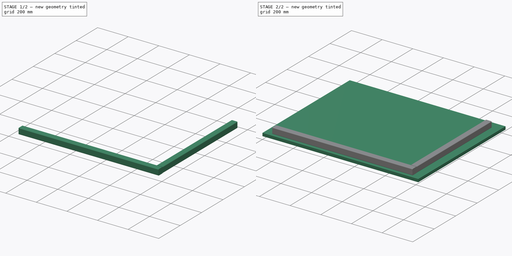
[diagram: build sequence overview — one tinted view per stage of 2, left to right]
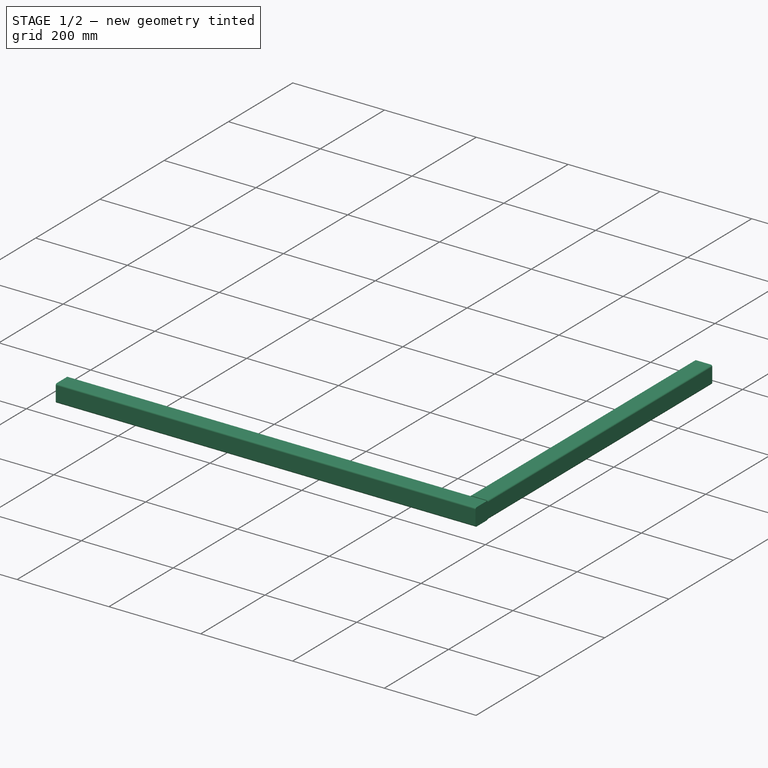
[diagram: stage 1 of 2 — iso view after this stage's code; geometry added in this stage tinted green]
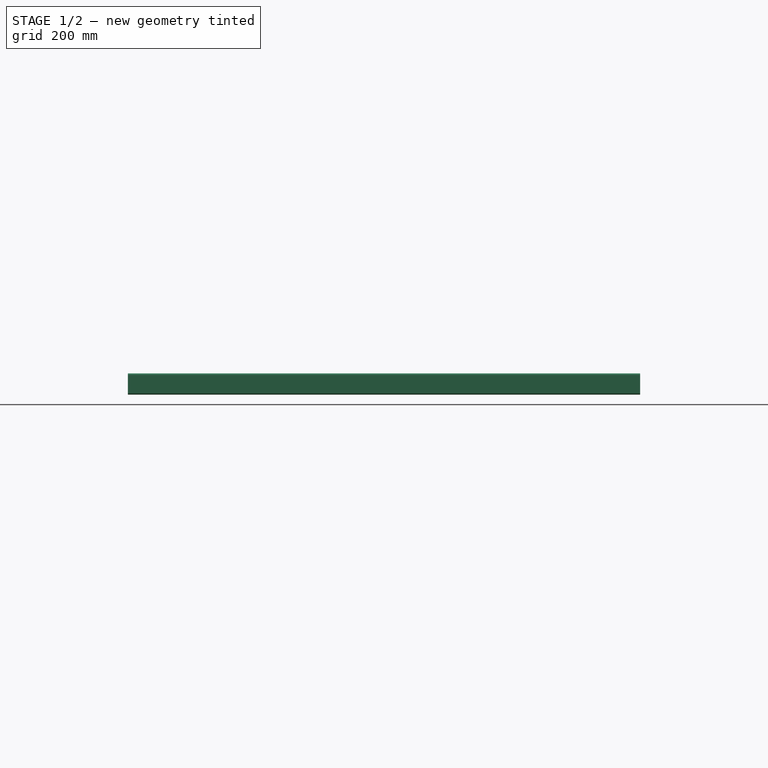
[diagram: stage 1 of 2 — front view after this stage's code; geometry added in this stage tinted green]
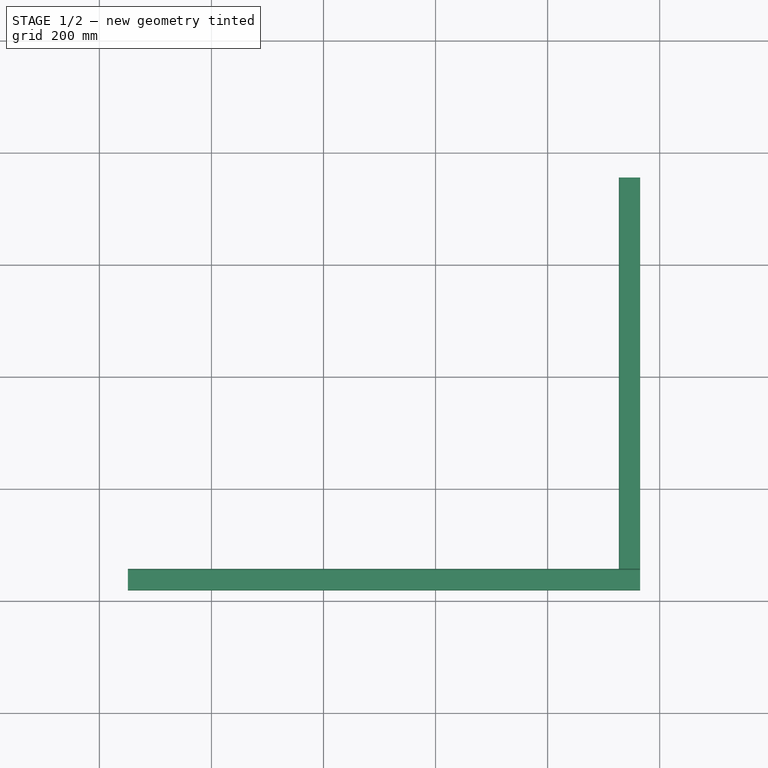
[diagram: stage 1 of 2 — top view after this stage's code; geometry added in this stage tinted green]
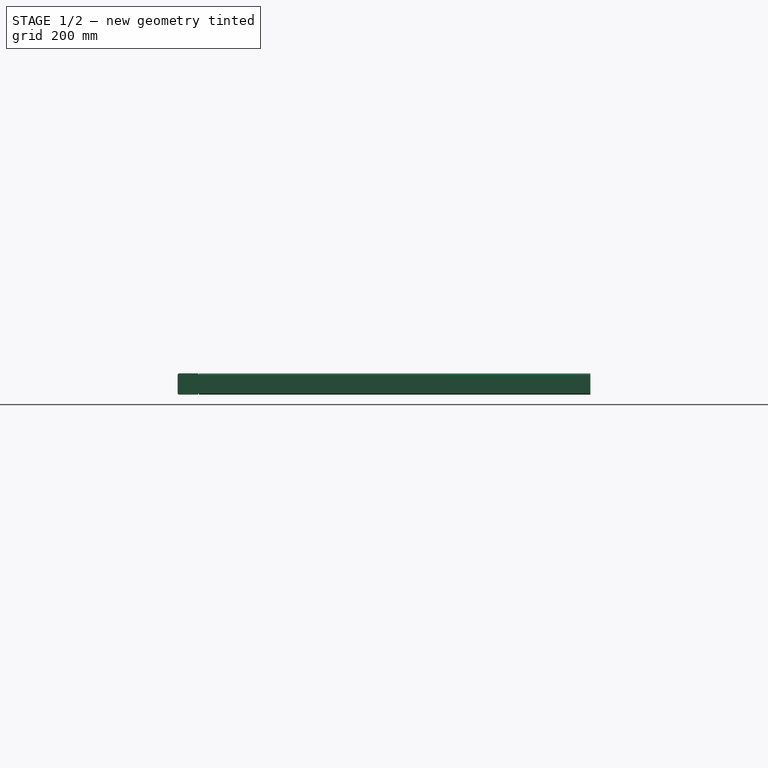
[diagram: stage 1 of 2 — right view after this stage's code; geometry added in this stage tinted green]
FCSTD DOCUMENT  (FreeCAD 0.19R)
Label: Lid
License: Creative Commons Attribution
LicenseURL: http://creativecommons.org/licenses/by/4.0/
objects: App::Link×27, Sketcher::SketchObject×3, Part::Extrusion×3, App::LinkGroup×2, Part::Feature×1
note: 7 computed .brp shape members not serialized (recipe doc carries the construction recipe); baked Part::Feature solids carry a one-line shape summary decoded from their .brp

FEATURE [Sketcher::SketchObject] Sketch019  label="Sketch_2x2_rail007"
  sketch-geometry (8):
    g0: LineSegment StartX=0 StartY=34.925 StartZ=0 EndX=0 EndY=3.175 EndZ=0
    g1: ArcOfCircle CenterX=3.175 CenterY=34.925 CenterZ=0 NormalX=0 NormalY=0 NormalZ=1 AngleXU=0 Radius=3.175 StartAngle=1.5708 EndAngle=3.14159
    g2: LineSegment StartX=3.175 StartY=38.1 StartZ=0 EndX=34.925 EndY=38.1 EndZ=0
    g3: ArcOfCircle CenterX=34.925 CenterY=34.925 CenterZ=0 NormalX=0 NormalY=0 NormalZ=1 AngleXU=0 Radius=3.175 StartAngle=1.2e-15 EndAngle=1.5708
    g4: LineSegment StartX=38.1 StartY=34.925 StartZ=0 EndX=38.1 EndY=3.175 EndZ=0
    g5: ArcOfCircle CenterX=34.925 CenterY=3.175 CenterZ=0 NormalX=0 NormalY=0 NormalZ=1 AngleXU=0 Radius=3.175 StartAngle=4.71239 EndAngle=6.28319
    g6: LineSegment StartX=34.925 StartY=0 StartZ=0 EndX=3.175 EndY=0 EndZ=0
    g7: ArcOfCircle CenterX=3.175 CenterY=3.175 CenterZ=0 NormalX=0 NormalY=0 NormalZ=1 AngleXU=0 Radius=3.175 StartAngle=3.14159 EndAngle=4.71239
  constraints (22):
    c: Vertical(g0)
    c: Tangent(g0,g1) = -1.5708
    c: Radius(g1) = 3.175
    c: Angle(g1) = 1.5708
    c: Coincident(g2,g1)
    c: Horizontal(g2)
    c: Tangent(g2,g3) = 1.5708
    c: Coincident(g4,g3)
    c: Vertical(g4)
    c: Tangent(g5,g4) = 1.5708
    c: Horizontal(g6)
    c: Tangent(g6,g5) = 1.5708
    c: Tangent(g7,g6) = 1.5708
    c: Tangent(g7,g0) = -1.5708
    c: Equal(g1,g7)
    c: Equal(g7,g3)
    c: Equal(g2,g0)
    c: Equal(g0,g6)
    c: Equal(g6,g4)
    c: PointOnObject(g-1,g0)
    c: PointOnObject(g6,g-1)
    c: DistanceX(g0,g4) = 38.1
FEATURE [Part::Extrusion] Extrude019  label="LF_A"
  Base = -> Sketch019
  Dir = (0,0,1)
  DirMode = 2
  FaceMakerClass = Part::FaceMakerBullseye
  LengthFwd = 914.4
  LengthRev = 0
  Placement = pos=(50.8,19.05,19.05) rot=(0.57735,0.57735,0.57735;2.0944rad)
  Solid = true
  Symmetric = false
FEATURE [Sketcher::SketchObject] Sketch020  label="Sketch_2x2_rail008"
  sketch-geometry (8):
    g0: LineSegment StartX=0 StartY=34.925 StartZ=0 EndX=0 EndY=3.175 EndZ=0
    g1: ArcOfCircle CenterX=3.175 CenterY=34.925 CenterZ=0 NormalX=0 NormalY=0 NormalZ=1 AngleXU=0 Radius=3.175 StartAngle=1.5708 EndAngle=3.14159
    g2: LineSegment StartX=3.175 StartY=38.1 StartZ=0 EndX=34.925 EndY=38.1 EndZ=0
    g3: ArcOfCircle CenterX=34.925 CenterY=34.925 CenterZ=0 NormalX=0 NormalY=0 NormalZ=1 AngleXU=0 Radius=3.175 StartAngle=1.5e-15 EndAngle=1.5708
    g4: LineSegment StartX=38.1 StartY=34.925 StartZ=0 EndX=38.1 EndY=3.175 EndZ=0
    g5: ArcOfCircle CenterX=34.925 CenterY=3.175 CenterZ=0 NormalX=0 NormalY=0 NormalZ=1 AngleXU=0 Radius=3.175 StartAngle=4.71239 EndAngle=6.28319
    g6: LineSegment StartX=34.925 StartY=4e-16 StartZ=0 EndX=3.175 EndY=4e-16 EndZ=0
    g7: ArcOfCircle CenterX=3.175 CenterY=3.175 CenterZ=0 NormalX=0 NormalY=0 NormalZ=1 AngleXU=0 Radius=3.175 StartAngle=3.14159 EndAngle=4.71239
  constraints (22):
    c: Vertical(g0)
    c: Tangent(g0,g1) = -1.5708
    c: Radius(g1) = 3.175
    c: Angle(g1) = 1.5708
    c: Coincident(g2,g1)
    c: Horizontal(g2)
    c: Tangent(g2,g3) = 1.5708
    c: Coincident(g4,g3)
    c: Vertical(g4)
    c: Tangent(g5,g4) = 1.5708
    c: Horizontal(g6)
    c: Tangent(g6,g5) = 1.5708
    c: Tangent(g7,g6) = 1.5708
    c: Tangent(g7,g0) = -1.5708
    c: Equal(g1,g7)
    c: Equal(g7,g3)
    c: Equal(g2,g0)
    c: Equal(g0,g6)
    c: Equal(g6,g4)
    c: PointOnObject(g-1,g0)
    c: PointOnObject(g6,g-1)
    c: DistanceX(g0,g4) = 38.1
FEATURE [Part::Extrusion] Extrude020  label="LF_B"
  Base = -> Sketch020
  Dir = (0,0,1)
  DirMode = 2
  FaceMakerClass = Part::FaceMakerBullseye
  LengthFwd = 698.5
  LengthRev = 0
  Placement = pos=(965.2,57.15,19.05) rot=(0,0.707107,0.707107;3.14159rad)
  Solid = true
  Symmetric = false
FEATURE [App::Link] Link026  label="LF_A001"
  LinkPlacement = pos=(50.8005,793.75,19.0502) rot=(0.707107,0,0.707107;3.14159rad)
  LinkedObject = -> Extrude019
  Placement = pos=(50.8005,793.75,19.0502) rot=(0.707107,0,0.707107;3.14159rad)
FEATURE [App::Link] Link027  label="LF_B001"
  LinkPlacement = pos=(50.8,57.1502,19.0496) rot=(-0.57735,-0.57735,-0.57735;2.0944rad)
  LinkedObject = -> Extrude020
  Placement = pos=(50.8,57.1502,19.0496) rot=(-0.57735,-0.57735,-0.57735;2.0944rad)
FEATURE [Part::Feature] Screw_w_Washer_B
  Placement = pos=(69.85,82.55,1.48e-13) rot=(0,0,1;0rad)
  shape: bbox 15.88 x 15.88 x 50.8 mm, 35 faces (baked)
FEATURE [App::Link] Link028  label="Screw_w_Washer_B001"
  LinkPlacement = pos=(69.85,730.249,0.000169754) rot=(0,0,-1;1.5708rad)
  LinkedObject = -> Screw_w_Washer_B
  Placement = pos=(69.85,730.249,0.000169754) rot=(0,0,-1;1.5708rad)
FEATURE [App::Link] Link029  label="Screw_w_Washer_B002"
  LinkPlacement = pos=(69.8501,209.55,0.000109673) rot=(0,0,1;0rad)
  LinkedObject = -> Screw_w_Washer_B
  Placement = pos=(69.8501,209.55,0.000109673) rot=(0,0,1;0rad)
FEATURE [App::Link] Link  label="Screw_w_Washer_B003"
  LinkPlacement = pos=(69.85,336.55,0) rot=(0,0,1;0rad)
  LinkedObject = -> Screw_w_Washer_B
  Placement = pos=(69.85,336.55,0) rot=(0,0,1;0rad)
FEATURE [App::Link] Link030  label="Screw_w_Washer_B004"
  LinkPlacement = pos=(69.85,603.25,0) rot=(0,0,1;0rad)
  LinkedObject = -> Screw_w_Washer_B
  Placement = pos=(69.85,603.25,0) rot=(0,0,1;0rad)
FEATURE [App::Link] Link031  label="Screw_w_Washer_B005"
  LinkPlacement = pos=(69.85,476.25,0) rot=(0,0,1;0rad)
  LinkedObject = -> Screw_w_Washer_B
  Placement = pos=(69.85,476.25,0) rot=(0,0,1;0rad)
FEATURE [App::Link] Link032  label="Screw_w_Washer_B006"
  LinkTransform = true
  LinkedObject = -> Screw_w_Washer_B
FEATURE [App::Link] Link033  label="Screw_w_Washer_B007"
  LinkTransform = true
  LinkedObject = -> Link028
FEATURE [App::Link] Link034  label="Screw_w_Washer_B008"
  LinkTransform = true
  LinkedObject = -> Link029
FEATURE [App::Link] Link035  label="Screw_w_Washer_B009"
  LinkTransform = true
  LinkedObject = -> Link
FEATURE [App::Link] Link036  label="Screw_w_Washer_B010"
  LinkTransform = true
  LinkedObject = -> Link030
FEATURE [App::Link] Link037  label="Screw_w_Washer_B011"
  LinkTransform = true
  LinkedObject = -> Link031
FEATURE [App::LinkGroup] LinkGroup
  ElementList = -> [Link032,Link033,Link034,Link035,Link036,Link037]
  LinkMode = 1
  Placement = pos=(876.301,3.05176e-05,-7.7486e-07) rot=(0,0,1;0rad)
FEATURE [App::Link] Link038  label="Screw_w_Washer_B012"
  LinkPlacement = pos=(76.2,38.1,0) rot=(0,0,1;0rad)
  LinkedObject = -> Screw_w_Washer_B
  Placement = pos=(76.2,38.1,0) rot=(0,0,1;0rad)
FEATURE [App::Link] Link039  label="Screw_w_Washer_B013"
  LinkPlacement = pos=(939.8,38.0999,0) rot=(0,0,1;0rad)
  LinkedObject = -> Screw_w_Washer_B
  Placement = pos=(939.8,38.0999,0) rot=(0,0,1;0rad)
FEATURE [App::Link] Link040  label="Screw_w_Washer_B014"
  LinkPlacement = pos=(203.2,38.1,0) rot=(0,0,1;0rad)
  LinkedObject = -> Screw_w_Washer_B
  Placement = pos=(203.2,38.1,0) rot=(0,0,1;0rad)
FEATURE [App::Link] Link041  label="Screw_w_Washer_B015"
  LinkPlacement = pos=(812.8,38.0999,0) rot=(0,0,1;0rad)
  LinkedObject = -> Screw_w_Washer_B
  Placement = pos=(812.8,38.0999,0) rot=(0,0,1;0rad)
FEATURE [App::Link] Link042  label="Screw_w_Washer_B016"
  LinkPlacement = pos=(355.6,38.1,0) rot=(0,0,1;0rad)
  LinkedObject = -> Screw_w_Washer_B
  Placement = pos=(355.6,38.1,0) rot=(0,0,1;0rad)
FEATURE [App::Link] Link043  label="Screw_w_Washer_B017"
  LinkPlacement = pos=(660.4,38.0999,0) rot=(0,0,1;0rad)
  LinkedObject = -> Screw_w_Washer_B
  Placement = pos=(660.4,38.0999,0) rot=(0,0,1;0rad)
FEATURE [App::Link] Link044  label="Screw_w_Washer_B018"
  LinkPlacement = pos=(508,38.1,0) rot=(0,0,1;0rad)
  LinkedObject = -> Screw_w_Washer_B
  Placement = pos=(508,38.1,0) rot=(0,0,1;0rad)
FEATURE [App::Link] Link045  label="Screw_w_Washer_B019"
  LinkTransform = true
  LinkedObject = -> Link038
FEATURE [App::Link] Link046  label="Screw_w_Washer_B020"
  LinkTransform = true
  LinkedObject = -> Link039
FEATURE [App::Link] Link047  label="Screw_w_Washer_B021"
  LinkTransform = true
  LinkedObject = -> Link040
FEATURE [App::Link] Link048  label="Screw_w_Washer_B022"
  LinkTransform = true
  LinkedObject = -> Link041
FEATURE [App::Link] Link049  label="Screw_w_Washer_B023"
  LinkTransform = true
  LinkedObject = -> Link042
FEATURE [App::Link] Link050  label="Screw_w_Washer_B024"
  LinkTransform = true
  LinkedObject = -> Link043
FEATURE [App::Link] Link051  label="Screw_w_Washer_B025"
  LinkTransform = true
  LinkedObject = -> Link044
FEATURE [App::LinkGroup] LinkGroup001
  ElementList = -> [Link045,Link046,Link047,Link048,Link049,Link050,Link051]
  LinkMode = 1
  Placement = pos=(0,736.6,-7.7486e-07) rot=(0,0,1;0rad)
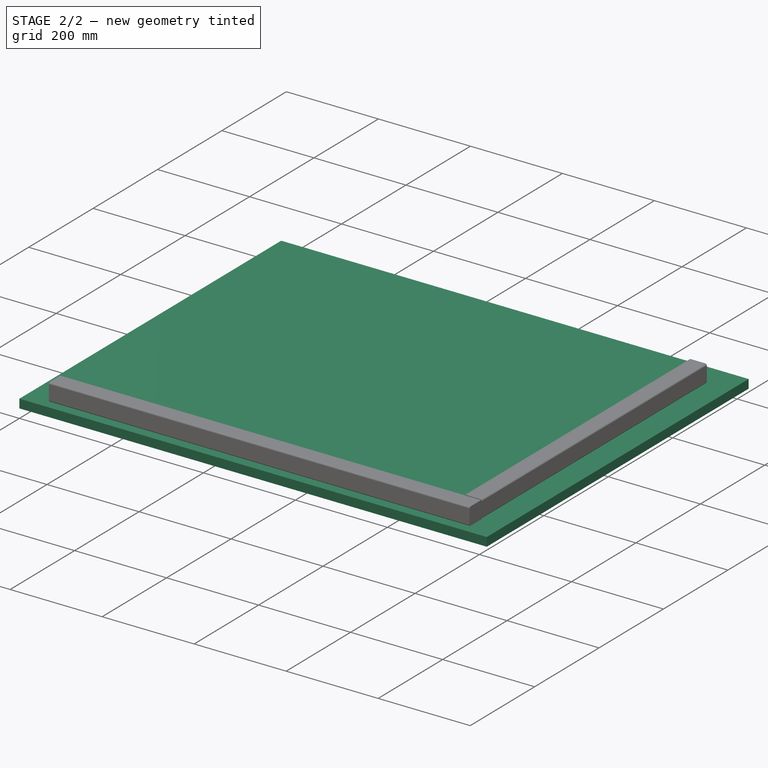
[diagram: stage 2 of 2 — iso view after this stage's code; geometry added in this stage tinted green]
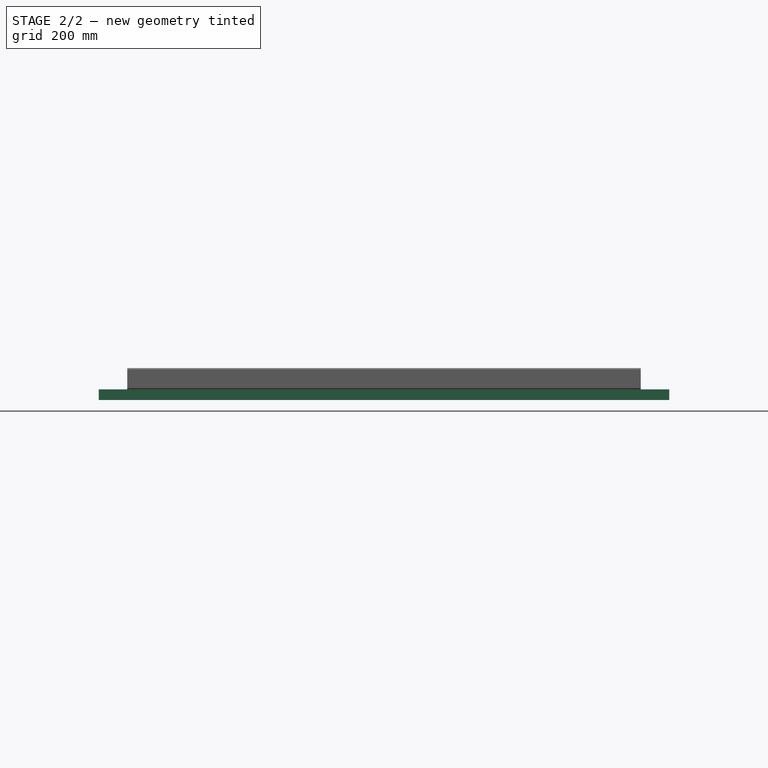
[diagram: stage 2 of 2 — front view after this stage's code; geometry added in this stage tinted green]
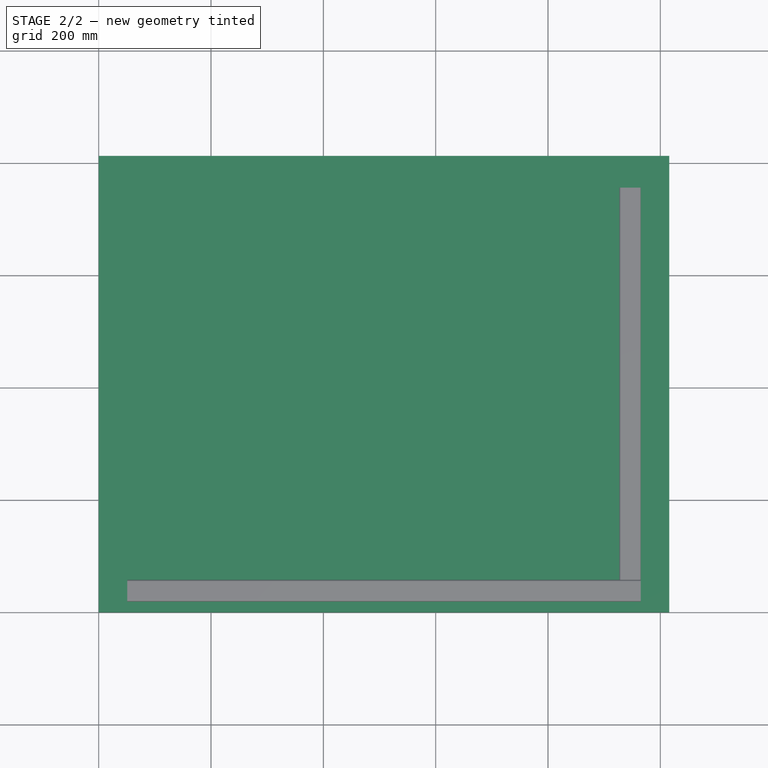
[diagram: stage 2 of 2 — top view after this stage's code; geometry added in this stage tinted green]
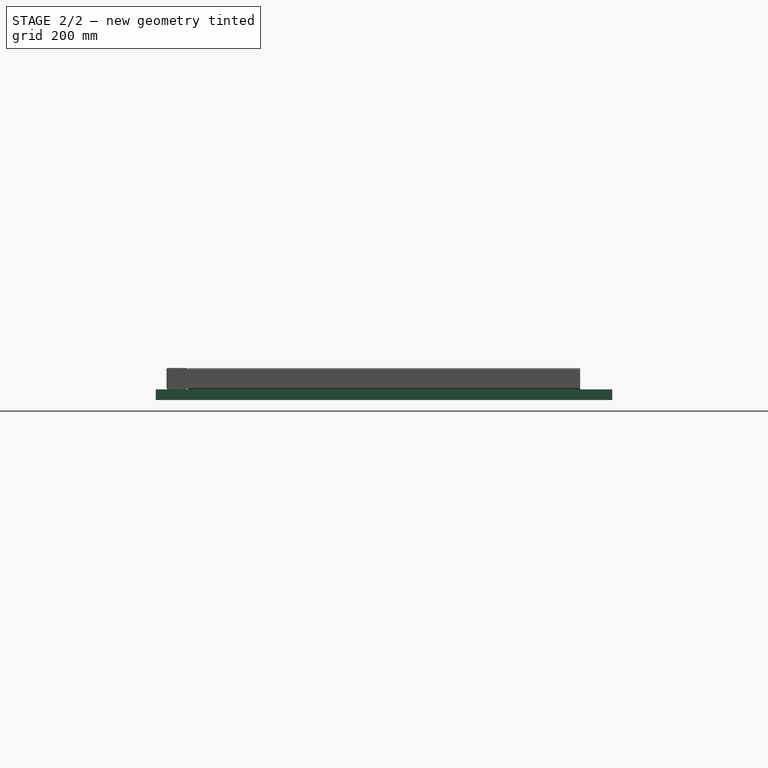
[diagram: stage 2 of 2 — right view after this stage's code; geometry added in this stage tinted green]
FEATURE [Sketcher::SketchObject] Sketch018  label="Sketch_A"
  sketch-geometry (4):
    g0: LineSegment StartX=0 StartY=0 StartZ=0 EndX=1016 EndY=0 EndZ=0
    g1: LineSegment StartX=1016 StartY=0 StartZ=0 EndX=1016 EndY=812.8 EndZ=0
    g2: LineSegment StartX=1016 StartY=812.8 StartZ=0 EndX=0 EndY=812.8 EndZ=0
    g3: LineSegment StartX=0 StartY=812.8 StartZ=0 EndX=0 EndY=0 EndZ=0
  constraints (11):
    c: Coincident(g0,g1)
    c: Coincident(g1,g2)
    c: Coincident(g2,g3)
    c: Coincident(g3,g0)
    c: Horizontal(g0)
    c: Horizontal(g2)
    c: Vertical(g1)
    c: Vertical(g3)
    c: Coincident(g0,g-1)
    c: Distance(g0) = 1016
    c: Distance(g1) = 812.8
FEATURE [Part::Extrusion] Extrude018  label="Part_A_Lid"
  Base = -> Sketch018
  Dir = (0,0,1)
  DirMode = 2
  FaceMakerClass = Part::FaceMakerBullseye
  LengthFwd = 19.05
  LengthRev = 0
  Placement = pos=(4.4e-14,-6.8e-14,-4.41e-13) rot=(0,0,1;0rad)
  Solid = true
  Symmetric = false
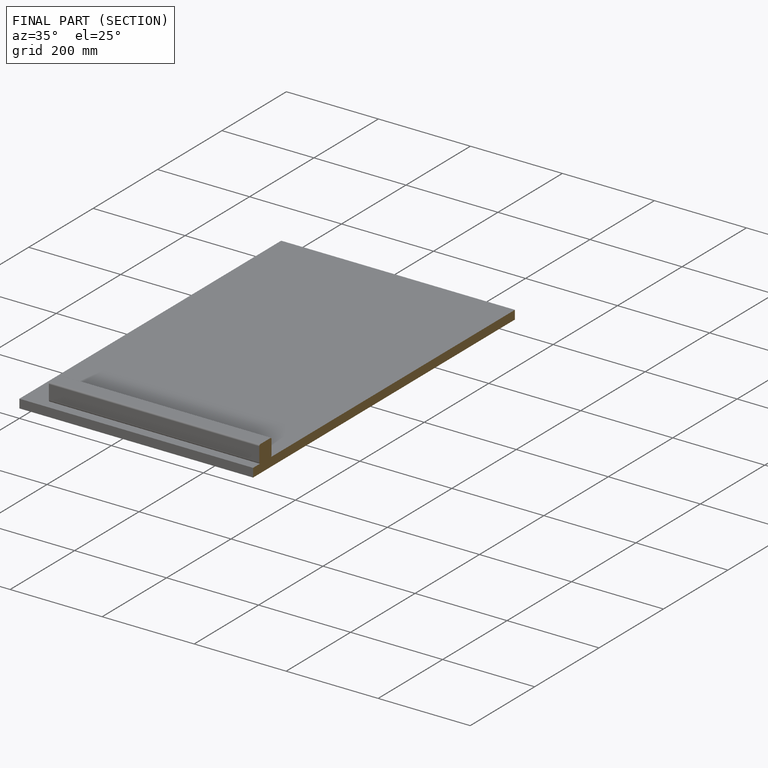
[diagram: finished part — half-section view (interior)]
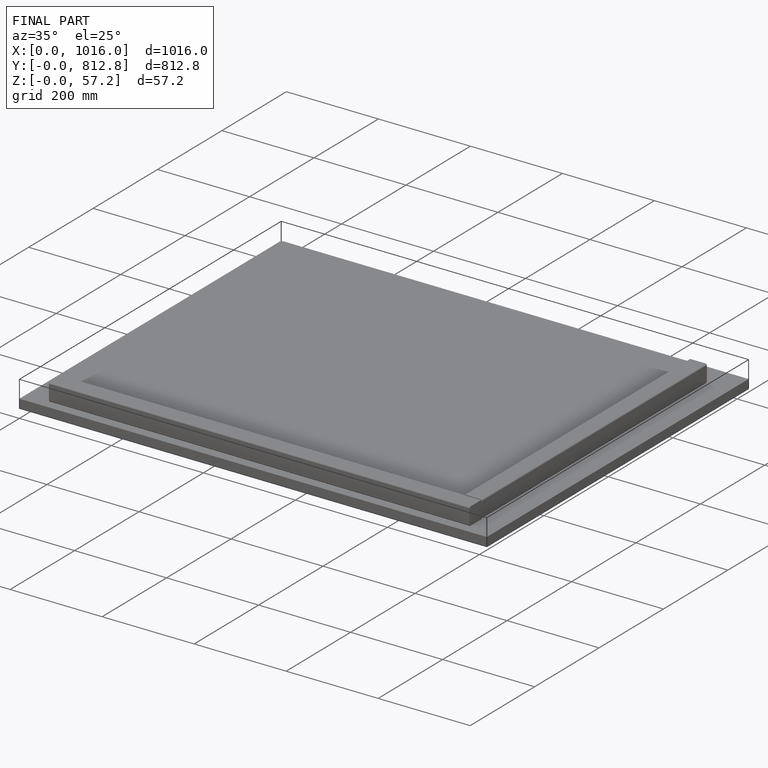
[diagram: finished part — iso view with bounding-box wireframe]
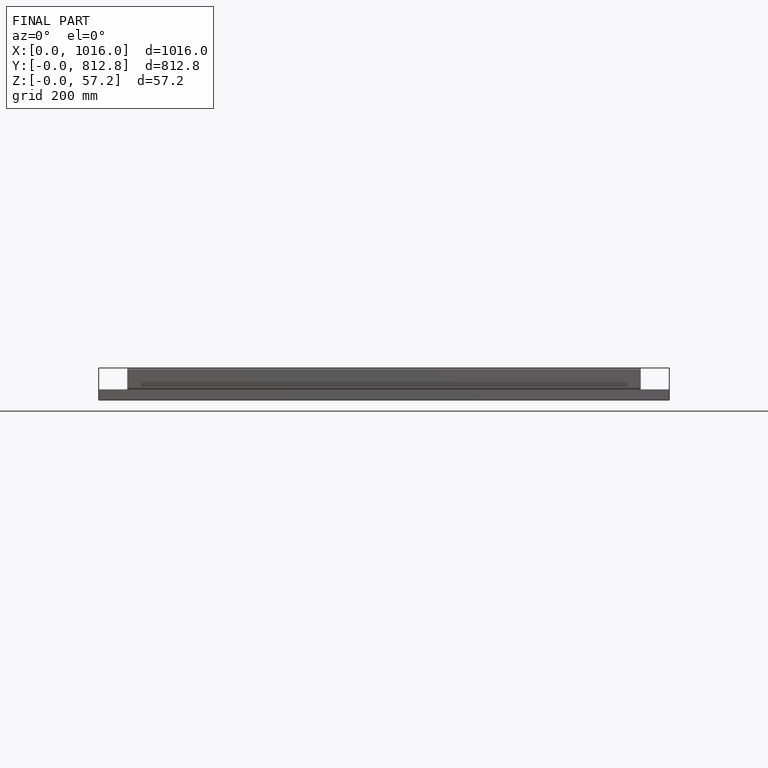
[diagram: finished part — front view with bounding-box wireframe]
